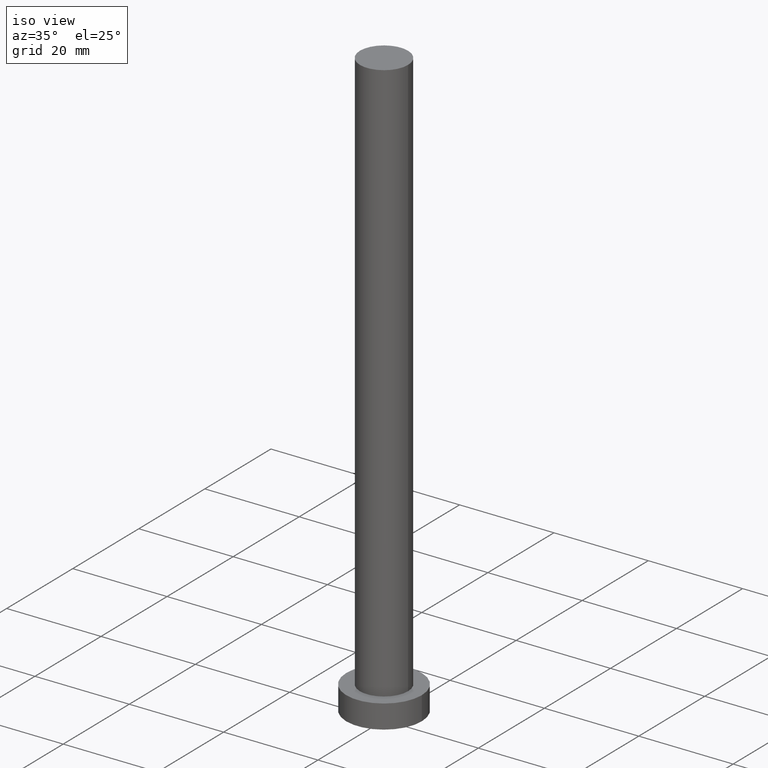
[diagram: clean part render]
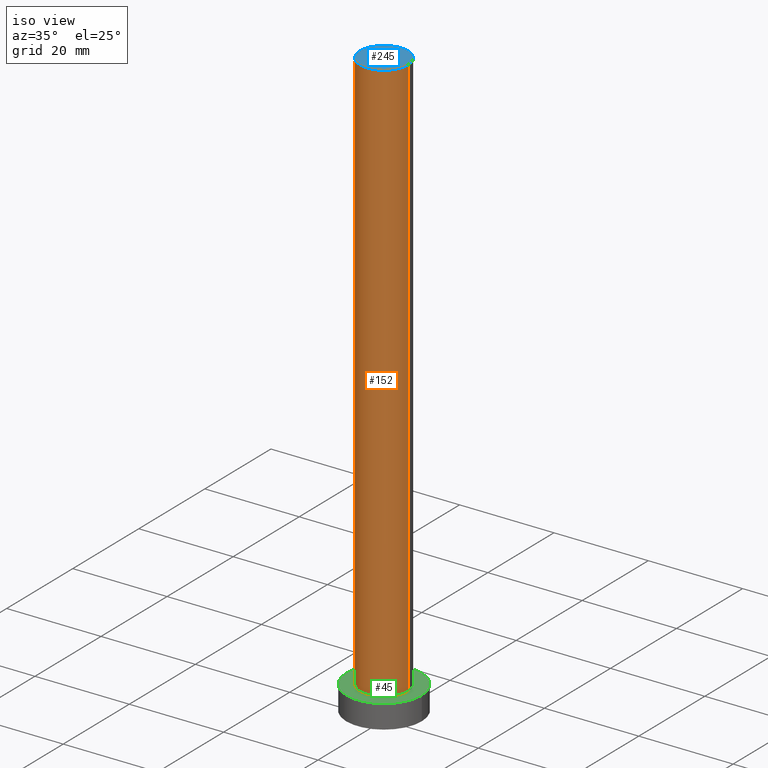
[diagram: same view with three faces highlighted in distinct colors, each labeled with its STEP entity id]
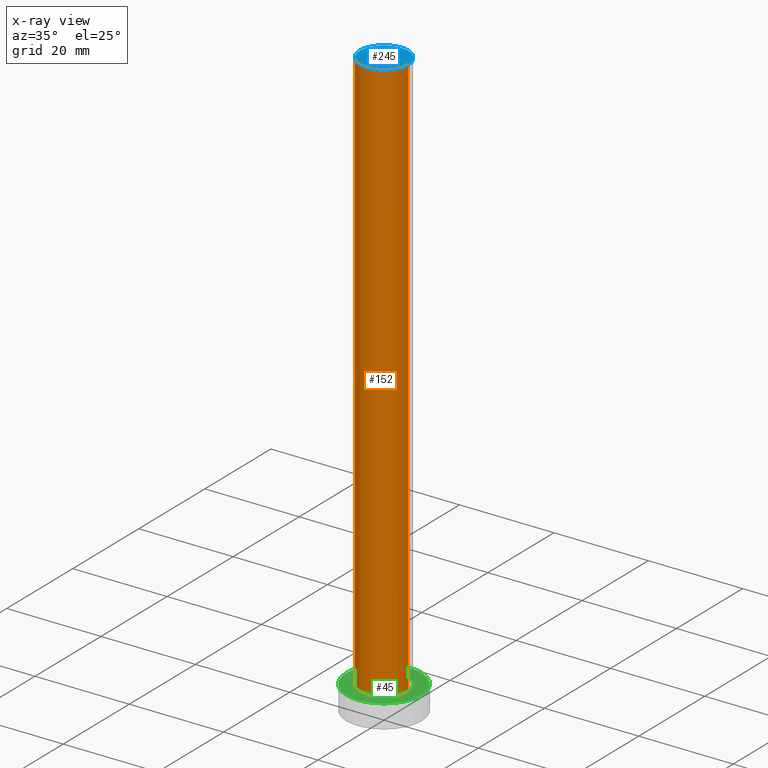
[diagram: x-ray of the same camera — body ghosted, the three highlighted faces saturated]
A machine part, iso view with three faces highlighted in distinct colors.
The next image is the same camera in x-ray (body ghosted, the three faces saturated) — at least one of them is partly hidden behind the body in this view.
Their STEP definitions:

[orange] entity #152 — the highlighted cylindrical surface (edge-blend (fillet) strip) has radius 5.1 mm, axis along (-0, -0, -1).
#3 = CARTESIAN_POINT ( 'NONE',  ( 5.099999999999999645, 6.245698675651500839E-16, 125.0000000000000000 ) ) ;
#8 = EDGE_CURVE ( 'NONE', #83, #212, #221, .T. ) ;
#11 = CARTESIAN_POINT ( 'NONE',  ( 0.000000000000000000, 0.000000000000000000, 125.0000000000000000 ) ) ;
#16 = DIRECTION ( 'NONE',  ( 0.000000000000000000, 0.000000000000000000, 1.000000000000000000 ) ) ;
#19 = CARTESIAN_POINT ( 'NONE',  ( 5.099999999999999645, 6.245698675651500839E-16, 125.0000000000000000 ) ) ;
#27 = ORIENTED_EDGE ( 'NONE', *, *, #237, .T. ) ;
#41 = DIRECTION ( 'NONE',  ( -0.000000000000000000, -0.000000000000000000, -1.000000000000000000 ) ) ;
#43 = DIRECTION ( 'NONE',  ( -1.000000000000000000, 0.000000000000000000, 0.000000000000000000 ) ) ;
#51 = VECTOR ( 'NONE', #41, 1000.000000000000000 ) ;
#52 = VERTEX_POINT ( 'NONE', #174 ) ;
#57 = DIRECTION ( 'NONE',  ( 1.000000000000000000, 0.000000000000000000, 0.000000000000000000 ) ) ;
#58 = LINE ( 'NONE', #19, #209 ) ;
#62 = CIRCLE ( 'NONE', #130, 5.099999999999999645 ) ;
#83 = VERTEX_POINT ( 'NONE', #216 ) ;
#90 = EDGE_LOOP ( 'NONE', ( #223, #103, #115, #27 ) ) ;
#92 = CARTESIAN_POINT ( 'NONE',  ( 0.000000000000000000, 0.000000000000000000, 125.0000000000000000 ) ) ;
#94 = DIRECTION ( 'NONE',  ( -0.000000000000000000, -0.000000000000000000, -1.000000000000000000 ) ) ;
#103 = ORIENTED_EDGE ( 'NONE', *, *, #8, .F. ) ;
#115 = ORIENTED_EDGE ( 'NONE', *, *, #172, .T. ) ;
#123 = DIRECTION ( 'NONE',  ( -0.000000000000000000, -0.000000000000000000, -1.000000000000000000 ) ) ;
#124 = CARTESIAN_POINT ( 'NONE',  ( -5.099999999999999645, 0.000000000000000000, 125.0000000000000000 ) ) ;
#130 = AXIS2_PLACEMENT_3D ( 'NONE', #205, #177, #57 ) ;
#131 = VERTEX_POINT ( 'NONE', #203 ) ;
#144 = LINE ( 'NONE', #124, #51 ) ;
#152 = ADVANCED_FACE ( 'NONE', ( #161 ), #241, .T. ) ;
#161 = FACE_OUTER_BOUND ( 'NONE', #90, .T. ) ;
#163 = AXIS2_PLACEMENT_3D ( 'NONE', #11, #16, #232 ) ;
#172 = EDGE_CURVE ( 'NONE', #83, #131, #144, .T. ) ;
#174 = CARTESIAN_POINT ( 'NONE',  ( 5.099999999999999645, 6.245698675651500839E-16, 5.000000000000000000 ) ) ;
#177 = DIRECTION ( 'NONE',  ( 0.000000000000000000, 0.000000000000000000, 1.000000000000000000 ) ) ;
#195 = EDGE_CURVE ( 'NONE', #212, #52, #58, .T. ) ;
#201 = AXIS2_PLACEMENT_3D ( 'NONE', #92, #123, #43 ) ;
#203 = CARTESIAN_POINT ( 'NONE',  ( -5.099999999999999645, 0.000000000000000000, 5.000000000000000000 ) ) ;
#205 = CARTESIAN_POINT ( 'NONE',  ( 0.000000000000000000, 0.000000000000000000, 5.000000000000000000 ) ) ;
#209 = VECTOR ( 'NONE', #94, 1000.000000000000000 ) ;
#212 = VERTEX_POINT ( 'NONE', #3 ) ;
#216 = CARTESIAN_POINT ( 'NONE',  ( -5.099999999999999645, 0.000000000000000000, 125.0000000000000000 ) ) ;
#221 = CIRCLE ( 'NONE', #163, 5.099999999999999645 ) ;
#223 = ORIENTED_EDGE ( 'NONE', *, *, #195, .F. ) ;
#232 = DIRECTION ( 'NONE',  ( 1.000000000000000000, 0.000000000000000000, 0.000000000000000000 ) ) ;
#237 = EDGE_CURVE ( 'NONE', #131, #52, #62, .T. ) ;
#241 = CYLINDRICAL_SURFACE ( 'NONE', #201, 5.099999999999999645 ) ;

[blue] entity #245 — the highlighted planar face has unit normal (0, 0, 1).
#3 = CARTESIAN_POINT ( 'NONE',  ( 5.099999999999999645, 6.245698675651500839E-16, 125.0000000000000000 ) ) ;
#4 = AXIS2_PLACEMENT_3D ( 'NONE', #135, #86, #87 ) ;
#8 = EDGE_CURVE ( 'NONE', #83, #212, #221, .T. ) ;
#11 = CARTESIAN_POINT ( 'NONE',  ( 0.000000000000000000, 0.000000000000000000, 125.0000000000000000 ) ) ;
#16 = DIRECTION ( 'NONE',  ( 0.000000000000000000, 0.000000000000000000, 1.000000000000000000 ) ) ;
#26 = EDGE_CURVE ( 'NONE', #212, #83, #239, .T. ) ;
#42 = DIRECTION ( 'NONE',  ( 1.000000000000000000, 0.000000000000000000, -0.000000000000000000 ) ) ;
#61 = CARTESIAN_POINT ( 'NONE',  ( 0.000000000000000000, 0.000000000000000000, 125.0000000000000000 ) ) ;
#74 = ORIENTED_EDGE ( 'NONE', *, *, #26, .T. ) ;
#77 = FACE_OUTER_BOUND ( 'NONE', #211, .T. ) ;
#83 = VERTEX_POINT ( 'NONE', #216 ) ;
#86 = DIRECTION ( 'NONE',  ( 0.000000000000000000, 0.000000000000000000, 1.000000000000000000 ) ) ;
#87 = DIRECTION ( 'NONE',  ( 1.000000000000000000, 0.000000000000000000, 0.000000000000000000 ) ) ;
#118 = PLANE ( 'NONE',  #228 ) ;
#135 = CARTESIAN_POINT ( 'NONE',  ( 0.000000000000000000, 0.000000000000000000, 125.0000000000000000 ) ) ;
#163 = AXIS2_PLACEMENT_3D ( 'NONE', #11, #16, #232 ) ;
#210 = ORIENTED_EDGE ( 'NONE', *, *, #8, .T. ) ;
#211 = EDGE_LOOP ( 'NONE', ( #210, #74 ) ) ;
#212 = VERTEX_POINT ( 'NONE', #3 ) ;
#216 = CARTESIAN_POINT ( 'NONE',  ( -5.099999999999999645, 0.000000000000000000, 125.0000000000000000 ) ) ;
#220 = DIRECTION ( 'NONE',  ( 0.000000000000000000, 0.000000000000000000, 1.000000000000000000 ) ) ;
#221 = CIRCLE ( 'NONE', #163, 5.099999999999999645 ) ;
#228 = AXIS2_PLACEMENT_3D ( 'NONE', #61, #220, #42 ) ;
#232 = DIRECTION ( 'NONE',  ( 1.000000000000000000, 0.000000000000000000, 0.000000000000000000 ) ) ;
#239 = CIRCLE ( 'NONE', #4, 5.099999999999999645 ) ;
#245 = ADVANCED_FACE ( 'NONE', ( #77 ), #118, .T. ) ;

[green] entity #45 — the highlighted planar face has unit normal (0, 0, 1).
#5 = CARTESIAN_POINT ( 'NONE',  ( -8.000000000000000000, 0.000000000000000000, 5.000000000000000000 ) ) ;
#17 = CARTESIAN_POINT ( 'NONE',  ( 0.000000000000000000, 0.000000000000000000, 5.000000000000000000 ) ) ;
#20 = DIRECTION ( 'NONE',  ( 0.000000000000000000, 0.000000000000000000, 1.000000000000000000 ) ) ;
#36 = EDGE_LOOP ( 'NONE', ( #133, #154 ) ) ;
#45 = ADVANCED_FACE ( 'NONE', ( #173, #252 ), #109, .T. ) ;
#49 = VERTEX_POINT ( 'NONE', #235 ) ;
#52 = VERTEX_POINT ( 'NONE', #174 ) ;
#54 = AXIS2_PLACEMENT_3D ( 'NONE', #140, #180, #96 ) ;
#57 = DIRECTION ( 'NONE',  ( 1.000000000000000000, 0.000000000000000000, 0.000000000000000000 ) ) ;
#60 = AXIS2_PLACEMENT_3D ( 'NONE', #17, #72, #254 ) ;
#62 = CIRCLE ( 'NONE', #130, 5.099999999999999645 ) ;
#72 = DIRECTION ( 'NONE',  ( 0.000000000000000000, 0.000000000000000000, 1.000000000000000000 ) ) ;
#76 = CARTESIAN_POINT ( 'NONE',  ( 0.000000000000000000, 0.000000000000000000, 5.000000000000000000 ) ) ;
#91 = EDGE_CURVE ( 'NONE', #52, #131, #112, .T. ) ;
#96 = DIRECTION ( 'NONE',  ( 1.000000000000000000, 0.000000000000000000, 0.000000000000000000 ) ) ;
#97 = CIRCLE ( 'NONE', #54, 8.000000000000000000 ) ;
#109 = PLANE ( 'NONE',  #60 ) ;
#112 = CIRCLE ( 'NONE', #129, 5.099999999999999645 ) ;
#126 = EDGE_CURVE ( 'NONE', #49, #244, #97, .T. ) ;
#129 = AXIS2_PLACEMENT_3D ( 'NONE', #171, #157, #233 ) ;
#130 = AXIS2_PLACEMENT_3D ( 'NONE', #205, #177, #57 ) ;
#131 = VERTEX_POINT ( 'NONE', #203 ) ;
#133 = ORIENTED_EDGE ( 'NONE', *, *, #234, .T. ) ;
#140 = CARTESIAN_POINT ( 'NONE',  ( 0.000000000000000000, 0.000000000000000000, 5.000000000000000000 ) ) ;
#146 = AXIS2_PLACEMENT_3D ( 'NONE', #76, #20, #164 ) ;
#154 = ORIENTED_EDGE ( 'NONE', *, *, #126, .T. ) ;
#157 = DIRECTION ( 'NONE',  ( 0.000000000000000000, 0.000000000000000000, 1.000000000000000000 ) ) ;
#158 = ORIENTED_EDGE ( 'NONE', *, *, #91, .F. ) ;
#160 = CIRCLE ( 'NONE', #146, 8.000000000000000000 ) ;
#164 = DIRECTION ( 'NONE',  ( 1.000000000000000000, 0.000000000000000000, 0.000000000000000000 ) ) ;
#171 = CARTESIAN_POINT ( 'NONE',  ( 0.000000000000000000, 0.000000000000000000, 5.000000000000000000 ) ) ;
#173 = FACE_BOUND ( 'NONE', #236, .T. ) ;
#174 = CARTESIAN_POINT ( 'NONE',  ( 5.099999999999999645, 6.245698675651500839E-16, 5.000000000000000000 ) ) ;
#177 = DIRECTION ( 'NONE',  ( 0.000000000000000000, 0.000000000000000000, 1.000000000000000000 ) ) ;
#180 = DIRECTION ( 'NONE',  ( 0.000000000000000000, 0.000000000000000000, 1.000000000000000000 ) ) ;
#203 = CARTESIAN_POINT ( 'NONE',  ( -5.099999999999999645, 0.000000000000000000, 5.000000000000000000 ) ) ;
#205 = CARTESIAN_POINT ( 'NONE',  ( 0.000000000000000000, 0.000000000000000000, 5.000000000000000000 ) ) ;
#208 = ORIENTED_EDGE ( 'NONE', *, *, #237, .F. ) ;
#233 = DIRECTION ( 'NONE',  ( 1.000000000000000000, 0.000000000000000000, 0.000000000000000000 ) ) ;
#234 = EDGE_CURVE ( 'NONE', #244, #49, #160, .T. ) ;
#235 = CARTESIAN_POINT ( 'NONE',  ( 8.000000000000000000, 9.797174393178825657E-16, 5.000000000000000000 ) ) ;
#236 = EDGE_LOOP ( 'NONE', ( #208, #158 ) ) ;
#237 = EDGE_CURVE ( 'NONE', #131, #52, #62, .T. ) ;
#244 = VERTEX_POINT ( 'NONE', #5 ) ;
#252 = FACE_OUTER_BOUND ( 'NONE', #36, .T. ) ;
#254 = DIRECTION ( 'NONE',  ( 1.000000000000000000, 0.000000000000000000, -0.000000000000000000 ) ) ;